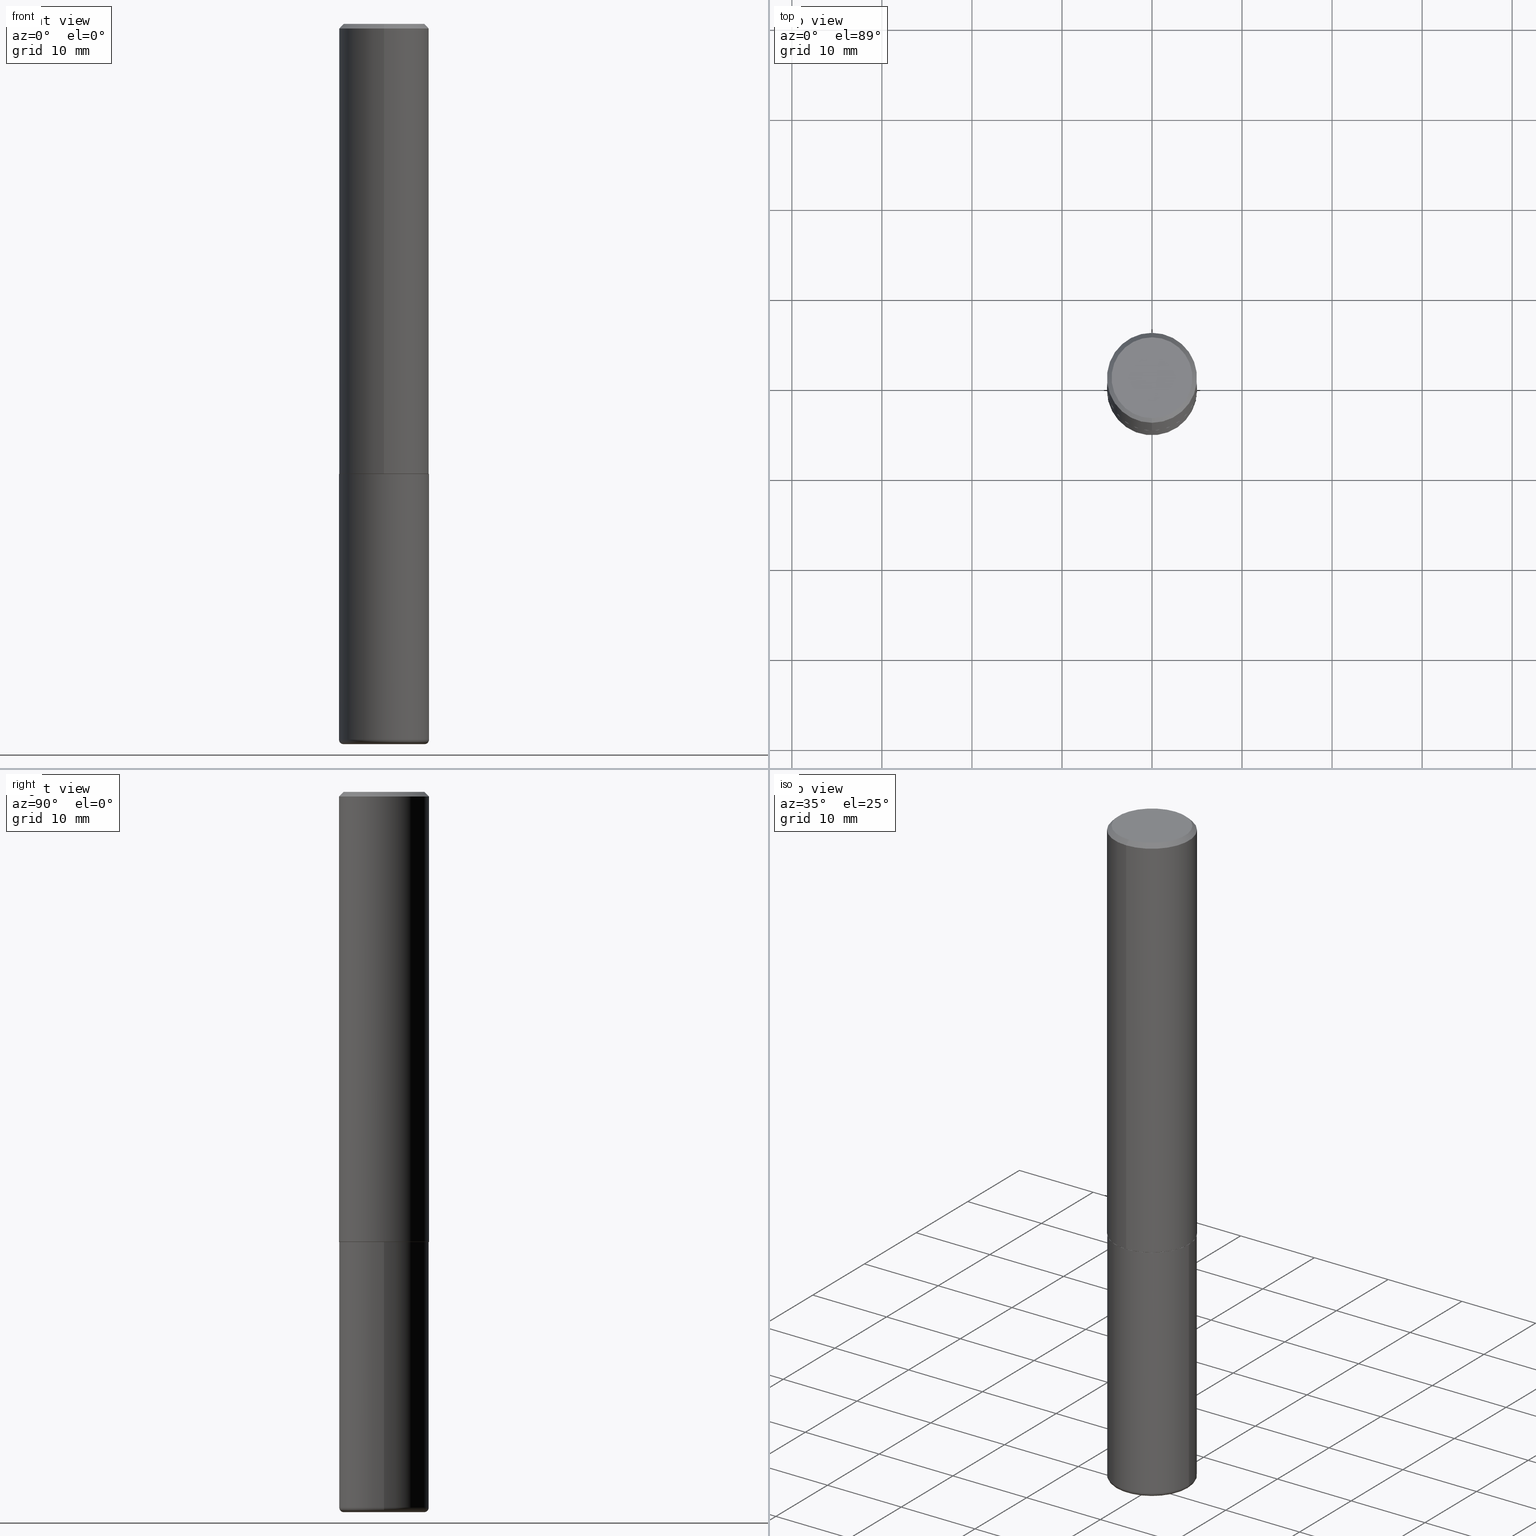
[diagram: canonical four-view strip — front | top / right | iso, engineering-drawing reading convention]
A machine part, canonical four-view strip (front | top / right | iso — engineering-drawing reading convention). The complete STEP part file that produces these views, byte-faithful:
ISO-10303-21;
HEADER;
FILE_DESCRIPTION (( 'STEP AP203' ),
    '1' );
FILE_NAME ('74414.STEP',
    '2024-03-06T15:12:17',
    ( '' ),
    ( '' ),
    'SwSTEP 2.0',
    'SolidWorks 2023',
    '' );
FILE_SCHEMA (( 'CONFIG_CONTROL_DESIGN' ));
ENDSEC;

DATA;
#1 = EDGE_CURVE ( 'NONE', #213, #373, #341, .T. ) ;
#2 = CARTESIAN_POINT ( 'NONE',  ( 1.234936949548815012E-15, 0.1768499999999998407, -5.065124715121833152E-16 ) ) ;
#3 = APPROVAL_DATE_TIME ( #94, #241 ) ;
#4 = SECURITY_CLASSIFICATION ( '', '', #100 ) ;
#5 = DIRECTION ( 'NONE',  ( -2.445468806185136597E-29, 3.491481338843145583E-15, 1.000000000000000000 ) ) ;
#6 = COORDINATED_UNIVERSAL_TIME_OFFSET ( 5, 0, .BEHIND. ) ;
#7 = CARTESIAN_POINT ( 'NONE',  ( 1.391597947986204111E-15, 0.1958499999999931407, -1.968500000000000583 ) ) ;
#8 = ADVANCED_FACE ( 'NONE', ( #416 ), #55, .F. ) ;
#9 = DIRECTION ( 'NONE',  ( -2.445268841296851437E-29, 3.491767699944464545E-15, 1.000000000000000000 ) ) ;
#10 = AXIS2_PLACEMENT_3D ( 'NONE', #307, #317, #311 ) ;
#11 = APPROVAL_PERSON_ORGANIZATION ( #320, #241, #414 ) ;
#12 = CARTESIAN_POINT ( 'NONE',  ( -0.1968500000000000250, -7.501780853635190206E-15, -1.968499999999999694 ) ) ;
#13 = ORIENTED_EDGE ( 'NONE', *, *, #151, .T. ) ;
#14 = ADVANCED_FACE ( 'NONE', ( #288 ), #228, .F. ) ;
#15 = CC_DESIGN_PERSON_AND_ORGANIZATION_ASSIGNMENT ( #191, #134, ( #4 ) ) ;
#16 = AXIS2_PLACEMENT_3D ( 'NONE', #224, #410, #193 ) ;
#17 = AXIS2_PLACEMENT_3D ( 'NONE', #83, #310, #251 ) ;
#18 = VERTEX_POINT ( 'NONE', #126 ) ;
#19 = CARTESIAN_POINT ( 'NONE',  ( 4.813905344975440714E-29, -6.872981015512730918E-15, -1.968499999999999694 ) ) ;
#20 = ORIENTED_EDGE ( 'NONE', *, *, #229, .T. ) ;
#21 = FACE_OUTER_BOUND ( 'NONE', #77, .T. ) ;
#22 = ORIENTED_EDGE ( 'NONE', *, *, #201, .T. ) ;
#23 = DIRECTION ( 'NONE',  ( -2.445268841296851437E-29, 3.491767699944464545E-15, 1.000000000000000000 ) ) ;
#24 = VECTOR ( 'NONE', #324, 39.37007874015748854 ) ;
#25 = ORIENTED_EDGE ( 'NONE', *, *, #346, .F. ) ;
#26 = DIRECTION ( 'NONE',  ( 7.105427357601001859E-15, 1.000000000000000000, -3.491481338843145583E-15 ) ) ;
#27 = ORIENTED_EDGE ( 'NONE', *, *, #415, .F. ) ;
#28 = VERTEX_POINT ( 'NONE', #60 ) ;
#29 = EDGE_CURVE ( 'NONE', #28, #176, #80, .T. ) ;
#30 = ORIENTED_EDGE ( 'NONE', *, *, #182, .F. ) ;
#31 = VECTOR ( 'NONE', #380, 39.37007874015748143 ) ;
#32 = CONICAL_SURFACE ( 'NONE', #142, 0.1958499999999999963, 0.7853981633975336552 ) ;
#33 = PERSON_AND_ORGANIZATION_ROLE ( 'design_supplier' ) ;
#34 = ORIENTED_EDGE ( 'NONE', *, *, #346, .T. ) ;
#35 = EDGE_CURVE ( 'NONE', #62, #213, #160, .T. ) ;
#36 = DIRECTION ( 'NONE',  ( 6.982962677686265133E-15, 1.000000000000000000, -3.491137977679279029E-15 ) ) ;
#37 = ADVANCED_FACE ( 'NONE', ( #156 ), #57, .F. ) ;
#38 = PERSON_AND_ORGANIZATION ( #396, #217 ) ;
#39 = FACE_OUTER_BOUND ( 'NONE', #215, .T. ) ;
#40 = CALENDAR_DATE ( 2024, 6, 3 ) ;
#41 = DIRECTION ( 'NONE',  ( -2.445268841296851437E-29, 3.491767699944464545E-15, 1.000000000000000000 ) ) ;
#42 = DIRECTION ( 'NONE',  ( 2.438088387897960049E-29, -3.491481338843145188E-15, -1.000000000000000000 ) ) ;
#43 = CYLINDRICAL_SURFACE ( 'NONE', #98, 0.1968499999999999694 ) ;
#44 = CIRCLE ( 'NONE', #277, 0.1968499999999999694 ) ;
#45 = AXIS2_PLACEMENT_3D ( 'NONE', #235, #5, #132 ) ;
#46 = DIRECTION ( 'NONE',  ( -2.445268841296851437E-29, 3.491767699944464545E-15, 1.000000000000000000 ) ) ;
#47 = ORIENTED_EDGE ( 'NONE', *, *, #51, .T. ) ;
#48 = CC_DESIGN_DATE_AND_TIME_ASSIGNMENT ( #161, #379, ( #221 ) ) ;
#49 = ORIENTED_EDGE ( 'NONE', *, *, #364, .F. ) ;
#50 = ORIENTED_EDGE ( 'NONE', *, *, #240, .T. ) ;
#51 = EDGE_CURVE ( 'NONE', #18, #401, #171, .T. ) ;
#52 = DIRECTION ( 'NONE',  ( 4.937700262164538576E-15, 0.7071067811865437980, -0.7071067811865511255 ) ) ;
#53 = ORIENTED_EDGE ( 'NONE', *, *, #390, .T. ) ;
#54 = DIRECTION ( 'NONE',  ( -2.445268841296851437E-29, 3.491767699944464545E-15, 1.000000000000000000 ) ) ;
#55 = PLANE ( 'NONE',  #394 ) ;
#56 = CARTESIAN_POINT ( 'NONE',  ( 4.890537682593712927E-31, -6.983535399888942699E-17, -0.02000000000000004205 ) ) ;
#57 = PLANE ( 'NONE',  #267 ) ;
#58 = PRODUCT_RELATED_PRODUCT_CATEGORY ( 'detail', '', ( #73 ) ) ;
#59 = LINE ( 'NONE', #155, #131 ) ;
#60 = CARTESIAN_POINT ( 'NONE',  ( 0.1968500000000000250, -8.247577218615273316E-15, -1.968499999999999694 ) ) ;
#61 = PERSON_AND_ORGANIZATION_ROLE ( 'creator' ) ;
#62 = VERTEX_POINT ( 'NONE', #378 ) ;
#63 = CIRCLE ( 'NONE', #295, 0.1968499999999999694 ) ;
#64 = EDGE_CURVE ( 'NONE', #361, #62, #290, .T. ) ;
#65 = DIRECTION ( 'NONE',  ( 6.982962677686265922E-15, 1.000000000000000000, -3.491767699944464940E-15 ) ) ;
#66 = CARTESIAN_POINT ( 'NONE',  ( 7.654072816478859974E-29, -1.092798744244516270E-14, -3.129900000000000571 ) ) ;
#67 = CALENDAR_DATE ( 2024, 6, 3 ) ;
#68 = LINE ( 'NONE', #264, #87 ) ;
#69 = CONICAL_SURFACE ( 'NONE', #234, 0.1968500000000000527, 0.7853981633974466137 ) ;
#70 = DIRECTION ( 'NONE',  ( 0.000000000000000000, 0.000000000000000000, 1.000000000000000000 ) ) ;
#71 = DIRECTION ( 'NONE',  ( -2.445468806185136597E-29, 3.491481338843145583E-15, 1.000000000000000000 ) ) ;
#72 = LINE ( 'NONE', #203, #342 ) ;
#73 = PRODUCT ( '74414', '74414', '', ( #157 ) ) ;
#74 = DIRECTION ( 'NONE',  ( -6.982962677686265133E-15, -1.000000000000000000, 3.491137977679279029E-15 ) ) ;
#75 = CC_DESIGN_APPROVAL ( #309, ( #221 ) ) ;
#76 = ADVANCED_FACE ( 'NONE', ( #128 ), #69, .T. ) ;
#77 = EDGE_LOOP ( 'NONE', ( #403, #206, #162, #190 ) ) ;
#78 = ORIENTED_EDGE ( 'NONE', *, *, #125, .F. ) ;
#79 = VERTEX_POINT ( 'NONE', #154 ) ;
#80 = CIRCLE ( 'NONE', #248, 0.1968500000000000250 ) ;
#81 = AXIS2_PLACEMENT_3D ( 'NONE', #408, #144, #214 ) ;
#82 = ORIENTED_EDGE ( 'NONE', *, *, #262, .F. ) ;
#83 = CARTESIAN_POINT ( 'NONE',  ( 7.702248551960706711E-29, -1.099676962482037231E-14, -3.149600000000000399 ) ) ;
#84 = CYLINDRICAL_SURFACE ( 'NONE', #90, 0.1968500000000001360 ) ;
#85 = CARTESIAN_POINT ( 'NONE',  ( -1.374596203102542397E-15, -0.1968500000000001360, 6.873544717340683232E-16 ) ) ;
#86 = ADVANCED_FACE ( 'NONE', ( #252 ), #314, .T. ) ;
#87 = VECTOR ( 'NONE', #230, 39.37007874015748143 ) ;
#88 = AXIS2_PLACEMENT_3D ( 'NONE', #253, #89, #123 ) ;
#89 = DIRECTION ( 'NONE',  ( -2.445468806185136597E-29, 3.491481338843145583E-15, 1.000000000000000000 ) ) ;
#90 = AXIS2_PLACEMENT_3D ( 'NONE', #210, #219, #116 ) ;
#91 = CC_DESIGN_PERSON_AND_ORGANIZATION_ASSIGNMENT ( #38, #33, ( #185 ) ) ;
#92 = DIRECTION ( 'NONE',  ( -2.445468806185136877E-29, 3.491481338843145188E-15, 1.000000000000000000 ) ) ;
#93 = EDGE_LOOP ( 'NONE', ( #303, #370, #409, #271 ) ) ;
#94 = DATE_AND_TIME ( #40, #209 ) ;
#95 = VERTEX_POINT ( 'NONE', #411 ) ;
#96 = CARTESIAN_POINT ( 'NONE',  ( 0.000000000000000000, 0.000000000000000000, 0.000000000000000000 ) ) ;
#97 = CARTESIAN_POINT ( 'NONE',  ( 4.813511714092851266E-29, -6.873544717340677315E-15, -1.968499999999999694 ) ) ;
#98 = AXIS2_PLACEMENT_3D ( 'NONE', #327, #263, #170 ) ;
#99 = CIRCLE ( 'NONE', #149, 0.1968500000000000527 ) ;
#100 = SECURITY_CLASSIFICATION_LEVEL ( 'unclassified' ) ;
#101 = FACE_OUTER_BOUND ( 'NONE', #372, .T. ) ;
#102 = DATE_AND_TIME ( #312, #256 ) ;
#103 = FACE_OUTER_BOUND ( 'NONE', #145, .T. ) ;
#104 = COORDINATED_UNIVERSAL_TIME_OFFSET ( 5, 0, .BEHIND. ) ;
#105 = DIRECTION ( 'NONE',  ( -2.445268841296851437E-29, 3.491767699944464545E-15, 1.000000000000000000 ) ) ;
#106 = CC_DESIGN_APPROVAL ( #241, ( #185 ) ) ;
#107 = CARTESIAN_POINT ( 'NONE',  ( 4.890537682593712927E-31, -6.983535399888942699E-17, -0.02000000000000004205 ) ) ;
#108 = FACE_OUTER_BOUND ( 'NONE', #334, .T. ) ;
#109 = ADVANCED_FACE ( 'NONE', ( #103 ), #199, .T. ) ;
#110 = CC_DESIGN_PERSON_AND_ORGANIZATION_ASSIGNMENT ( #381, #318, ( #73 ) ) ;
#111 = LOCAL_TIME ( 10, 12, 17.00000000000000000, #104 ) ;
#112 = ORIENTED_EDGE ( 'NONE', *, *, #329, .T. ) ;
#113 = EDGE_LOOP ( 'NONE', ( #399, #247, #150, #243 ) ) ;
#114 = CARTESIAN_POINT ( 'NONE',  ( 1.395150661665005404E-15, 0.1958499999999931407, -1.968500000000000583 ) ) ;
#115 = ORIENTED_EDGE ( 'NONE', *, *, #306, .T. ) ;
#116 = DIRECTION ( 'NONE',  ( -6.982962677686265922E-15, -1.000000000000000000, 3.491767699944464545E-15 ) ) ;
#117 = AXIS2_PLACEMENT_3D ( 'NONE', #302, #54, #365 ) ;
#118 = EDGE_LOOP ( 'NONE', ( #363, #275, #141, #82 ) ) ;
#119 = DIRECTION ( 'NONE',  ( -2.445268841296851437E-29, 3.491767699944464545E-15, 1.000000000000000000 ) ) ;
#120 = EDGE_LOOP ( 'NONE', ( #49, #286 ) ) ;
#121 = LINE ( 'NONE', #255, #278 ) ;
#122 = AXIS2_PLACEMENT_3D ( 'NONE', #291, #46, #173 ) ;
#123 = DIRECTION ( 'NONE',  ( 1.000000000000000000, -6.982962677686271444E-15, 4.883557194083114022E-29 ) ) ;
#124 = APPROVAL_ROLE ( '' ) ;
#125 = EDGE_CURVE ( 'NONE', #299, #28, #72, .T. ) ;
#126 = CARTESIAN_POINT ( 'NONE',  ( -0.1771500000000000019, -9.633663617761380556E-15, -3.149600000000000399 ) ) ;
#127 = APPLICATION_CONTEXT ( 'configuration controlled 3d designs of mechanical parts and assemblies' ) ;
#128 = FACE_OUTER_BOUND ( 'NONE', #183, .T. ) ;
#129 = CARTESIAN_POINT ( 'NONE',  ( 1.374596203102542200E-15, 0.1968499999999999694, -0.02000000000000072900 ) ) ;
#130 = CIRCLE ( 'NONE', #227, 0.1968500000000000527 ) ;
#131 = VECTOR ( 'NONE', #92, 39.37007874015748143 ) ;
#132 = DIRECTION ( 'NONE',  ( 1.000000000000000000, -6.982962677686266711E-15, 4.876176775795935793E-29 ) ) ;
#133 = ADVANCED_FACE ( 'NONE', ( #108 ), #43, .T. ) ;
#134 = PERSON_AND_ORGANIZATION_ROLE ( 'classification_officer' ) ;
#135 = DIRECTION ( 'NONE',  ( 5.024295867788490741E-15, 0.7071067811866103003, 0.7071067811864847341 ) ) ;
#136 = FACE_OUTER_BOUND ( 'NONE', #333, .T. ) ;
#137 = AXIS2_PLACEMENT_3D ( 'NONE', #359, #42, #268 ) ;
#138 = DIRECTION ( 'NONE',  ( 6.982962677686265133E-15, 1.000000000000000000, -3.491137977679279029E-15 ) ) ;
#139 = EDGE_CURVE ( 'NONE', #213, #95, #164, .T. ) ;
#140 = DESIGN_CONTEXT ( 'detailed design', #366, 'design' ) ;
#141 = ORIENTED_EDGE ( 'NONE', *, *, #35, .T. ) ;
#142 = AXIS2_PLACEMENT_3D ( 'NONE', #279, #119, #189 ) ;
#143 = MANIFOLD_SOLID_BREP ( 'Body-Move/Copy2[1]', #367 ) ;
#144 = DIRECTION ( 'NONE',  ( -2.445268841296851437E-29, 3.491767699944464545E-15, 1.000000000000000000 ) ) ;
#145 = EDGE_LOOP ( 'NONE', ( #339, #301 ) ) ;
#146 = ORIENTED_EDGE ( 'NONE', *, *, #328, .T. ) ;
#147 = CARTESIAN_POINT ( 'NONE',  ( -1.281884050883609900E-15, -0.1768499999999998407, 8.395324101811677409E-16 ) ) ;
#148 = TOROIDAL_SURFACE ( 'NONE', #384, 0.1771500000000000019, 0.01969999999999987733 ) ;
#149 = AXIS2_PLACEMENT_3D ( 'NONE', #56, #178, #376 ) ;
#150 = ORIENTED_EDGE ( 'NONE', *, *, #139, .F. ) ;
#151 = EDGE_CURVE ( 'NONE', #79, #299, #63, .T. ) ;
#152 = CC_DESIGN_PERSON_AND_ORGANIZATION_ASSIGNMENT ( #385, #389, ( #221 ) ) ;
#153 = DIRECTION ( 'NONE',  ( -1.000000000000000000, 7.105427357600965571E-15, 0.000000000000000000 ) ) ;
#154 = CARTESIAN_POINT ( 'NONE',  ( -0.1968499999999999417, -9.529284067101404126E-15, -3.129900000000000571 ) ) ;
#155 = CARTESIAN_POINT ( 'NONE',  ( -0.1968499999999999694, 1.398703375343756999E-15, -9.682923725166782276E-30 ) ) ;
#156 = FACE_OUTER_BOUND ( 'NONE', #362, .T. ) ;
#157 = MECHANICAL_CONTEXT ( 'NONE', #127, 'mechanical' ) ;
#158 = DIRECTION ( 'NONE',  ( -2.445468806185136597E-29, 3.491481338843145583E-15, 1.000000000000000000 ) ) ;
#159 = APPROVAL_DATE_TIME ( #102, #309 ) ;
#160 = LINE ( 'NONE', #350, #31 ) ;
#161 = DATE_AND_TIME ( #292, #285 ) ;
#162 = ORIENTED_EDGE ( 'NONE', *, *, #1, .T. ) ;
#163 = LINE ( 'NONE', #238, #24 ) ;
#164 = CIRCLE ( 'NONE', #398, 0.1968500000000002470 ) ;
#165 = CIRCLE ( 'NONE', #17, 0.1771500000000000019 ) ;
#166 = DIRECTION ( 'NONE',  ( 1.000000000000000000, 0.000000000000000000, 0.000000000000000000 ) ) ;
#167 = CC_DESIGN_PERSON_AND_ORGANIZATION_ASSIGNMENT ( #258, #61, ( #185 ) ) ;
#168 = DIRECTION ( 'NONE',  ( -6.982962677686265922E-15, -1.000000000000000000, 4.163344669033670112E-15 ) ) ;
#169 = CARTESIAN_POINT ( 'NONE',  ( 0.1771500000000000019, -1.216501928079728352E-14, -3.129900000000000571 ) ) ;
#170 = DIRECTION ( 'NONE',  ( 1.000000000000000000, -6.982962677686266711E-15, 4.876176775795935793E-29 ) ) ;
#171 = CIRCLE ( 'NONE', #16, 0.1771500000000000019 ) ;
#172 = CONICAL_SURFACE ( 'NONE', #375, 0.1958499999999999963, 0.7853981633975336552 ) ;
#173 = DIRECTION ( 'NONE',  ( -6.982962677686265922E-15, -1.000000000000000000, 3.491767699944464545E-15 ) ) ;
#174 = ORIENTED_EDGE ( 'NONE', *, *, #29, .T. ) ;
#175 = PRODUCT_DEFINITION_SHAPE ( 'NONE', 'NONE',  #221 ) ;
#176 = VERTEX_POINT ( 'NONE', #12 ) ;
#177 = EDGE_LOOP ( 'NONE', ( #174, #300 ) ) ;
#178 = DIRECTION ( 'NONE',  ( -2.445268841296851437E-29, 3.491767699944464545E-15, 1.000000000000000000 ) ) ;
#179 = ORIENTED_EDGE ( 'NONE', *, *, #201, .F. ) ;
#180 = ADVANCED_FACE ( 'NONE', ( #136 ), #405, .T. ) ;
#181 =( NAMED_UNIT ( * ) SI_UNIT ( $, .STERADIAN. ) SOLID_ANGLE_UNIT ( ) );
#182 = EDGE_CURVE ( 'NONE', #299, #79, #44, .T. ) ;
#183 = EDGE_LOOP ( 'NONE', ( #220, #25, #146, #50 ) ) ;
#184 = DIRECTION ( 'NONE',  ( -2.445268841296851437E-29, 3.491767699944464545E-15, 1.000000000000000000 ) ) ;
#185 = PRODUCT_DEFINITION_FORMATION_WITH_SPECIFIED_SOURCE ( 'ANY', '', #73, .NOT_KNOWN. ) ;
#186 = DIRECTION ( 'NONE',  ( 1.000000000000000000, -6.982962677686267499E-15, 0.000000000000000000 ) ) ;
#187 = APPLICATION_PROTOCOL_DEFINITION ( 'international standard', 'config_control_design', 1994, #127 ) ;
#188 = DIRECTION ( 'NONE',  ( 2.445268841296850876E-29, -3.491767699944464940E-15, -1.000000000000000000 ) ) ;
#189 = DIRECTION ( 'NONE',  ( -6.982962677686265922E-15, -1.000000000000000000, 4.184602492209747448E-15 ) ) ;
#190 = ORIENTED_EDGE ( 'NONE', *, *, #240, .F. ) ;
#191 = PERSON_AND_ORGANIZATION ( #396, #217 ) ;
#192 =( GEOMETRIC_REPRESENTATION_CONTEXT ( 3 ) GLOBAL_UNCERTAINTY_ASSIGNED_CONTEXT ( ( #382 ) ) GLOBAL_UNIT_ASSIGNED_CONTEXT ( ( #369, #338, #181 ) ) REPRESENTATION_CONTEXT ( 'NONE', 'WORKASPACE' ) );
#193 = DIRECTION ( 'NONE',  ( 1.000000000000000000, -6.982962677686261189E-15, 0.000000000000000000 ) ) ;
#194 = DIRECTION ( 'NONE',  ( 2.445268841296851437E-29, -3.491767699944464545E-15, -1.000000000000000000 ) ) ;
#195 = COORDINATED_UNIVERSAL_TIME_OFFSET ( 5, 0, .BEHIND. ) ;
#196 = CARTESIAN_POINT ( 'NONE',  ( -1.374596203102495065E-15, -0.1968500000000071026, -1.967499999999998916 ) ) ;
#197 = EDGE_CURVE ( 'NONE', #95, #207, #68, .T. ) ;
#198 = DATE_AND_TIME ( #67, #111 ) ;
#199 = PLANE ( 'NONE',  #137 ) ;
#200 = DIRECTION ( 'NONE',  ( 1.000000000000000000, -6.982962677686271444E-15, 4.883557194083114022E-29 ) ) ;
#201 = EDGE_CURVE ( 'NONE', #401, #299, #254, .T. ) ;
#202 = DIRECTION ( 'NONE',  ( -2.445468806185136877E-29, 3.491481338843145188E-15, 1.000000000000000000 ) ) ;
#203 = CARTESIAN_POINT ( 'NONE',  ( 0.1968499999999999694, -1.374596203102541411E-15, 9.598753983154298056E-30 ) ) ;
#204 = VECTOR ( 'NONE', #218, 39.37007874015748143 ) ;
#205 = AXIS2_PLACEMENT_3D ( 'NONE', #19, #305, #274 ) ;
#206 = ORIENTED_EDGE ( 'NONE', *, *, #262, .T. ) ;
#207 = VERTEX_POINT ( 'NONE', #129 ) ;
#208 = ORIENTED_EDGE ( 'NONE', *, *, #182, .T. ) ;
#209 = LOCAL_TIME ( 10, 12, 17.00000000000000000, #351 ) ;
#210 = CARTESIAN_POINT ( 'NONE',  ( 0.000000000000000000, 0.000000000000000000, 0.000000000000000000 ) ) ;
#211 = ADVANCED_FACE ( 'NONE', ( #101 ), #148, .T. ) ;
#212 = CARTESIAN_POINT ( 'NONE',  ( -0.1771500000000000019, -9.669260986046144223E-15, -3.129900000000000571 ) ) ;
#213 = VERTEX_POINT ( 'NONE', #196 ) ;
#214 = DIRECTION ( 'NONE',  ( -6.982962677686265922E-15, -1.000000000000000000, 4.184602492209747448E-15 ) ) ;
#215 = EDGE_LOOP ( 'NONE', ( #276, #13, #242, #280 ) ) ;
#216 = DIRECTION ( 'NONE',  ( -6.982962677686265922E-15, -1.000000000000000000, 4.184602492209747448E-15 ) ) ;
#217 = ORGANIZATION ( 'UNSPECIFIED', 'UNSPECIFIED', '' ) ;
#218 = DIRECTION ( 'NONE',  ( -2.445268841296851437E-29, 3.491767699944464940E-15, 1.000000000000000000 ) ) ;
#219 = DIRECTION ( 'NONE',  ( -2.445268841296851437E-29, 3.491767699944464545E-15, 1.000000000000000000 ) ) ;
#220 = ORIENTED_EDGE ( 'NONE', *, *, #229, .F. ) ;
#221 = PRODUCT_DEFINITION ( 'UNKNOWN', '', #185, #140 ) ;
#222 = PERSON_AND_ORGANIZATION ( #396, #217 ) ;
#223 = DIMENSIONAL_EXPONENTS ( 1.000000000000000000, 0.000000000000000000, 0.000000000000000000, 0.000000000000000000, 0.000000000000000000, 0.000000000000000000, 0.000000000000000000 ) ;
#224 = CARTESIAN_POINT ( 'NONE',  ( 7.702248551960706711E-29, -1.099676962482037231E-14, -3.149600000000000399 ) ) ;
#225 = APPROVAL_STATUS ( 'not_yet_approved' ) ;
#226 = AXIS2_PLACEMENT_3D ( 'NONE', #326, #266, #138 ) ;
#227 = AXIS2_PLACEMENT_3D ( 'NONE', #107, #105, #74 ) ;
#228 = PLANE ( 'NONE',  #412 ) ;
#229 = EDGE_CURVE ( 'NONE', #344, #373, #163, .T. ) ;
#230 = DIRECTION ( 'NONE',  ( -2.445268841296851437E-29, 3.491767699944464940E-15, 1.000000000000000000 ) ) ;
#231 = APPROVAL_STATUS ( 'not_yet_approved' ) ;
#232 = CARTESIAN_POINT ( 'NONE',  ( 4.811066445251554069E-29, -6.870052949640732965E-15, -1.967499999999999805 ) ) ;
#233 = APPROVAL_DATE_TIME ( #198, #353 ) ;
#234 = AXIS2_PLACEMENT_3D ( 'NONE', #283, #194, #36 ) ;
#235 = CARTESIAN_POINT ( 'NONE',  ( 0.000000000000000000, 0.000000000000000000, 0.000000000000000000 ) ) ;
#236 = AXIS2_PLACEMENT_3D ( 'NONE', #212, #26, #153 ) ;
#237 = FACE_OUTER_BOUND ( 'NONE', #93, .T. ) ;
#238 = CARTESIAN_POINT ( 'NONE',  ( -1.350489030861325626E-15, -0.1968500000000001082, -0.01999999999999935510 ) ) ;
#239 = APPROVAL_PERSON_ORGANIZATION ( #222, #353, #348 ) ;
#240 = EDGE_CURVE ( 'NONE', #207, #373, #130, .T. ) ;
#241 = APPROVAL ( #231, 'UNSPECIFIED' ) ;
#242 = ORIENTED_EDGE ( 'NONE', *, *, #125, .T. ) ;
#243 = ORIENTED_EDGE ( 'NONE', *, *, #35, .F. ) ;
#244 = ADVANCED_BREP_SHAPE_REPRESENTATION ( '74414', ( #143, #272, #374 ), #192 ) ;
#245 =( LENGTH_UNIT ( ) NAMED_UNIT ( * ) SI_UNIT ( $, .METRE. ) );
#246 = ADVANCED_FACE ( 'NONE', ( #237 ), #331, .T. ) ;
#247 = ORIENTED_EDGE ( 'NONE', *, *, #270, .T. ) ;
#248 = AXIS2_PLACEMENT_3D ( 'NONE', #281, #158, #186 ) ;
#249 = CARTESIAN_POINT ( 'NONE',  ( 0.1771500000000000019, -1.223380146317249313E-14, -3.149600000000000399 ) ) ;
#250 = VERTEX_POINT ( 'NONE', #321 ) ;
#251 = DIRECTION ( 'NONE',  ( 1.000000000000000000, -6.982962677686261189E-15, 0.000000000000000000 ) ) ;
#252 = FACE_OUTER_BOUND ( 'NONE', #261, .T. ) ;
#253 = CARTESIAN_POINT ( 'NONE',  ( 7.654072816478859974E-29, -1.092798744244516270E-14, -3.129900000000000571 ) ) ;
#254 = CIRCLE ( 'NONE', #330, 0.01969999999999989468 ) ;
#255 = CARTESIAN_POINT ( 'NONE',  ( 1.374596203102542200E-15, 0.1968499999999999694, -0.02000000000000072900 ) ) ;
#256 = LOCAL_TIME ( 10, 12, 17.00000000000000000, #287 ) ;
#257 = ORIENTED_EDGE ( 'NONE', *, *, #151, .F. ) ;
#258 = PERSON_AND_ORGANIZATION ( #396, #217 ) ;
#259 = ORIENTED_EDGE ( 'NONE', *, *, #29, .F. ) ;
#260 = ADVANCED_FACE ( 'NONE', ( #39 ), #391, .T. ) ;
#261 = EDGE_LOOP ( 'NONE', ( #27, #47, #22, #257 ) ) ;
#262 = EDGE_CURVE ( 'NONE', #95, #213, #407, .T. ) ;
#263 = DIRECTION ( 'NONE',  ( -2.445468806185136597E-29, 3.491481338843145583E-15, 1.000000000000000000 ) ) ;
#264 = CARTESIAN_POINT ( 'NONE',  ( 1.398703375343757985E-15, 0.1968500000000001360, -6.873544717340683232E-16 ) ) ;
#265 = DATE_AND_TIME ( #417, #273 ) ;
#266 = DIRECTION ( 'NONE',  ( 2.445268841296851437E-29, -3.491767699944464545E-15, -1.000000000000000000 ) ) ;
#267 = AXIS2_PLACEMENT_3D ( 'NONE', #2, #188, #65 ) ;
#268 = DIRECTION ( 'NONE',  ( -1.000000000000000000, 6.982962677686265922E-15, -4.876176775795935793E-29 ) ) ;
#269 = DIRECTION ( 'NONE',  ( 1.000000000000000000, -6.982962677686269866E-15, 0.000000000000000000 ) ) ;
#270 = EDGE_CURVE ( 'NONE', #361, #95, #293, .T. ) ;
#271 = ORIENTED_EDGE ( 'NONE', *, *, #1, .F. ) ;
#272 = MANIFOLD_SOLID_BREP ( 'Body-Move/Copy2[2]', #335 ) ;
#273 = LOCAL_TIME ( 10, 12, 17.00000000000000000, #195 ) ;
#274 = DIRECTION ( 'NONE',  ( 1.000000000000000000, -6.982962677686267499E-15, 0.000000000000000000 ) ) ;
#275 = ORIENTED_EDGE ( 'NONE', *, *, #64, .T. ) ;
#276 = ORIENTED_EDGE ( 'NONE', *, *, #308, .F. ) ;
#277 = AXIS2_PLACEMENT_3D ( 'NONE', #298, #397, #269 ) ;
#278 = VECTOR ( 'NONE', #52, 39.37007874015748854 ) ;
#279 = CARTESIAN_POINT ( 'NONE',  ( 4.813511714092851266E-29, -6.873544717340677315E-15, -1.968499999999999694 ) ) ;
#280 = ORIENTED_EDGE ( 'NONE', *, *, #400, .F. ) ;
#281 = CARTESIAN_POINT ( 'NONE',  ( 4.813905344975440714E-29, -6.872981015512730918E-15, -1.968499999999999694 ) ) ;
#282 = FACE_OUTER_BOUND ( 'NONE', #118, .T. ) ;
#283 = CARTESIAN_POINT ( 'NONE',  ( 4.890537682593712927E-31, -6.983535399888942699E-17, -0.02000000000000004205 ) ) ;
#284 = APPROVAL_STATUS ( 'not_yet_approved' ) ;
#285 = LOCAL_TIME ( 10, 12, 17.00000000000000000, #6 ) ;
#286 = ORIENTED_EDGE ( 'NONE', *, *, #64, .F. ) ;
#287 = COORDINATED_UNIVERSAL_TIME_OFFSET ( 5, 0, .BEHIND. ) ;
#288 = FACE_OUTER_BOUND ( 'NONE', #177, .T. ) ;
#289 = DIRECTION ( 'NONE',  ( -2.445268841296850876E-29, 3.491767699944464940E-15, 1.000000000000000000 ) ) ;
#290 = CIRCLE ( 'NONE', #10, 0.1958499999999999963 ) ;
#291 = CARTESIAN_POINT ( 'NONE',  ( 0.000000000000000000, 0.000000000000000000, 0.000000000000000000 ) ) ;
#292 = CALENDAR_DATE ( 2024, 6, 3 ) ;
#293 = LINE ( 'NONE', #7, #297 ) ;
#294 = CARTESIAN_POINT ( 'NONE',  ( 7.654072816478859974E-29, -1.092798744244516270E-14, -3.129900000000000571 ) ) ;
#295 = AXIS2_PLACEMENT_3D ( 'NONE', #66, #71, #387 ) ;
#296 = DIRECTION ( 'NONE',  ( -6.982962677686265922E-15, -1.000000000000000000, 4.163344669033670112E-15 ) ) ;
#297 = VECTOR ( 'NONE', #135, 39.37007874015748143 ) ;
#298 = CARTESIAN_POINT ( 'NONE',  ( 7.654072816478859974E-29, -1.092798744244516270E-14, -3.129900000000000571 ) ) ;
#299 = VERTEX_POINT ( 'NONE', #356 ) ;
#300 = ORIENTED_EDGE ( 'NONE', *, *, #400, .T. ) ;
#301 = ORIENTED_EDGE ( 'NONE', *, *, #51, .F. ) ;
#302 = CARTESIAN_POINT ( 'NONE',  ( -5.428821863719041386E-45, 7.752188435212310874E-31, 2.220132924459896583E-16 ) ) ;
#303 = ORIENTED_EDGE ( 'NONE', *, *, #139, .T. ) ;
#304 = AXIS2_PLACEMENT_3D ( 'NONE', #232, #41, #168 ) ;
#305 = DIRECTION ( 'NONE',  ( -2.445468806185136597E-29, 3.491481338843145583E-15, 1.000000000000000000 ) ) ;
#306 = EDGE_CURVE ( 'NONE', #401, #18, #165, .T. ) ;
#307 = CARTESIAN_POINT ( 'NONE',  ( 4.813511714092851266E-29, -6.873544717340677315E-15, -1.968499999999999694 ) ) ;
#308 = EDGE_CURVE ( 'NONE', #79, #176, #59, .T. ) ;
#309 = APPROVAL ( #284, 'UNSPECIFIED' ) ;
#310 = DIRECTION ( 'NONE',  ( -2.445468806185136597E-29, 3.491481338843145583E-15, 1.000000000000000000 ) ) ;
#311 = DIRECTION ( 'NONE',  ( -6.982962677686265922E-15, -1.000000000000000000, 4.184602492209747448E-15 ) ) ;
#312 = CALENDAR_DATE ( 2024, 6, 3 ) ;
#313 = DIRECTION ( 'NONE',  ( 2.438088387897960049E-29, -3.491481338843145188E-15, -1.000000000000000000 ) ) ;
#314 = TOROIDAL_SURFACE ( 'NONE', #88, 0.1771500000000000019, 0.01969999999999987733 ) ;
#315 = SHAPE_DEFINITION_REPRESENTATION ( #175, #244 ) ;
#316 = APPROVAL_PERSON_ORGANIZATION ( #354, #309, #124 ) ;
#317 = DIRECTION ( 'NONE',  ( -2.445268841296851437E-29, 3.491767699944464545E-15, 1.000000000000000000 ) ) ;
#318 = PERSON_AND_ORGANIZATION_ROLE ( 'design_owner' ) ;
#319 = ORIENTED_EDGE ( 'NONE', *, *, #415, .T. ) ;
#320 = PERSON_AND_ORGANIZATION ( #396, #217 ) ;
#321 = CARTESIAN_POINT ( 'NONE',  ( 1.304766576325678705E-15, 0.1768499999999998407, -3.955058252891884244E-16 ) ) ;
#322 = APPLICATION_PROTOCOL_DEFINITION ( 'international standard', 'config_control_design', 1994, #366 ) ;
#323 = AXIS2_PLACEMENT_3D ( 'NONE', #402, #23, #404 ) ;
#324 = DIRECTION ( 'NONE',  ( -4.851104656540954809E-15, -0.7071067811865486830, -0.7071067811865462405 ) ) ;
#325 = CC_DESIGN_DATE_AND_TIME_ASSIGNMENT ( #265, #392, ( #4 ) ) ;
#326 = CARTESIAN_POINT ( 'NONE',  ( 4.890537682593712927E-31, -6.983535399888942699E-17, -0.02000000000000004205 ) ) ;
#327 = CARTESIAN_POINT ( 'NONE',  ( 0.000000000000000000, 0.000000000000000000, 0.000000000000000000 ) ) ;
#328 = EDGE_CURVE ( 'NONE', #250, #207, #121, .T. ) ;
#329 = EDGE_CURVE ( 'NONE', #373, #207, #99, .T. ) ;
#330 = AXIS2_PLACEMENT_3D ( 'NONE', #169, #395, #352 ) ;
#331 = CYLINDRICAL_SURFACE ( 'NONE', #122, 0.1968500000000001360 ) ;
#332 = CIRCLE ( 'NONE', #117, 0.1768499999999998407 ) ;
#333 = EDGE_LOOP ( 'NONE', ( #383, #20, #112, #406 ) ) ;
#334 = EDGE_LOOP ( 'NONE', ( #208, #337, #259, #78 ) ) ;
#335 = CLOSED_SHELL ( 'NONE', ( #388, #246, #180, #76, #358, #377, #8, #37 ) ) ;
#336 = LENGTH_MEASURE_WITH_UNIT ( LENGTH_MEASURE( 0.02539999999999999897 ), #245 );
#337 = ORIENTED_EDGE ( 'NONE', *, *, #308, .T. ) ;
#338 =( NAMED_UNIT ( * ) PLANE_ANGLE_UNIT ( ) SI_UNIT ( $, .RADIAN. ) );
#339 = ORIENTED_EDGE ( 'NONE', *, *, #306, .F. ) ;
#340 = FACE_OUTER_BOUND ( 'NONE', #113, .T. ) ;
#341 = LINE ( 'NONE', #85, #204 ) ;
#342 = VECTOR ( 'NONE', #202, 39.37007874015748143 ) ;
#343 = CC_DESIGN_APPROVAL ( #353, ( #4 ) ) ;
#344 = VERTEX_POINT ( 'NONE', #147 ) ;
#345 = CARTESIAN_POINT ( 'NONE',  ( -1.350489030861325626E-15, -0.1968500000000001082, -0.01999999999999935510 ) ) ;
#346 = EDGE_CURVE ( 'NONE', #250, #344, #360, .T. ) ;
#347 = DIRECTION ( 'NONE',  ( -6.982962677686265922E-15, -1.000000000000000000, 3.491767699944464940E-15 ) ) ;
#348 = APPROVAL_ROLE ( '' ) ;
#349 = CARTESIAN_POINT ( 'NONE',  ( 4.813905344975440714E-29, -6.872981015512730918E-15, -1.968499999999999694 ) ) ;
#350 = CARTESIAN_POINT ( 'NONE',  ( -1.367613240424807079E-15, -0.1958500000000068797, -1.968499999999999028 ) ) ;
#351 = COORDINATED_UNIVERSAL_TIME_OFFSET ( 5, 0, .BEHIND. ) ;
#352 = DIRECTION ( 'NONE',  ( 1.000000000000000000, -6.982962677686266711E-15, 0.000000000000000000 ) ) ;
#353 = APPROVAL ( #225, 'UNSPECIFIED' ) ;
#354 = PERSON_AND_ORGANIZATION ( #396, #217 ) ;
#355 = CIRCLE ( 'NONE', #236, 0.01969999999999989468 ) ;
#356 = CARTESIAN_POINT ( 'NONE',  ( 0.1968499999999999417, -1.230258364554770273E-14, -3.129900000000000571 ) ) ;
#357 = CARTESIAN_POINT ( 'NONE',  ( 4.811066445251554069E-29, -6.870052949640732965E-15, -1.967499999999999805 ) ) ;
#358 = ADVANCED_FACE ( 'NONE', ( #21 ), #84, .T. ) ;
#359 = CARTESIAN_POINT ( 'NONE',  ( 7.702248551960706711E-29, -1.099676962482037231E-14, -3.149600000000000399 ) ) ;
#360 = CIRCLE ( 'NONE', #323, 0.1768499999999998407 ) ;
#361 = VERTEX_POINT ( 'NONE', #114 ) ;
#362 = EDGE_LOOP ( 'NONE', ( #34, #53 ) ) ;
#363 = ORIENTED_EDGE ( 'NONE', *, *, #270, .F. ) ;
#364 = EDGE_CURVE ( 'NONE', #62, #361, #413, .T. ) ;
#365 = DIRECTION ( 'NONE',  ( -6.982962677686265922E-15, -1.000000000000000000, 3.491767699944464940E-15 ) ) ;
#366 = APPLICATION_CONTEXT ( 'configuration controlled 3d designs of mechanical parts and assemblies' ) ;
#367 = CLOSED_SHELL ( 'NONE', ( #133, #211, #14, #260, #86, #109 ) ) ;
#368 = CC_DESIGN_SECURITY_CLASSIFICATION ( #4, ( #185 ) ) ;
#369 =( CONVERSION_BASED_UNIT ( 'INCH', #336 ) LENGTH_UNIT ( ) NAMED_UNIT ( #223 ) );
#370 = ORIENTED_EDGE ( 'NONE', *, *, #197, .T. ) ;
#371 = CARTESIAN_POINT ( 'NONE',  ( 4.813511714092851266E-29, -6.873544717340677315E-15, -1.968499999999999694 ) ) ;
#372 = EDGE_LOOP ( 'NONE', ( #115, #319, #30, #179 ) ) ;
#373 = VERTEX_POINT ( 'NONE', #345 ) ;
#374 = AXIS2_PLACEMENT_3D ( 'NONE', #96, #70, #166 ) ;
#375 = AXIS2_PLACEMENT_3D ( 'NONE', #371, #184, #216 ) ;
#376 = DIRECTION ( 'NONE',  ( -6.982962677686265133E-15, -1.000000000000000000, 3.491137977679279029E-15 ) ) ;
#377 = ADVANCED_FACE ( 'NONE', ( #282 ), #172, .T. ) ;
#378 = CARTESIAN_POINT ( 'NONE',  ( -1.367613240424807079E-15, -0.1958500000000068797, -1.968499999999999028 ) ) ;
#379 = DATE_TIME_ROLE ( 'creation_date' ) ;
#380 = DIRECTION ( 'NONE',  ( -4.937700262164969294E-15, -0.7071067811866054154, 0.7071067811864896191 ) ) ;
#381 = PERSON_AND_ORGANIZATION ( #396, #217 ) ;
#382 = UNCERTAINTY_MEASURE_WITH_UNIT (LENGTH_MEASURE( 1.000000000000000082E-05 ), #369, 'distance_accuracy_value', 'NONE');
#383 = ORIENTED_EDGE ( 'NONE', *, *, #390, .F. ) ;
#384 = AXIS2_PLACEMENT_3D ( 'NONE', #294, #393, #200 ) ;
#385 = PERSON_AND_ORGANIZATION ( #396, #217 ) ;
#386 = CIRCLE ( 'NONE', #205, 0.1968500000000000250 ) ;
#387 = DIRECTION ( 'NONE',  ( 1.000000000000000000, -6.982962677686269866E-15, 0.000000000000000000 ) ) ;
#388 = ADVANCED_FACE ( 'NONE', ( #340 ), #32, .T. ) ;
#389 = PERSON_AND_ORGANIZATION_ROLE ( 'creator' ) ;
#390 = EDGE_CURVE ( 'NONE', #344, #250, #332, .T. ) ;
#391 = CYLINDRICAL_SURFACE ( 'NONE', #45, 0.1968499999999999694 ) ;
#392 = DATE_TIME_ROLE ( 'classification_date' ) ;
#393 = DIRECTION ( 'NONE',  ( -2.445468806185136597E-29, 3.491481338843145583E-15, 1.000000000000000000 ) ) ;
#394 = AXIS2_PLACEMENT_3D ( 'NONE', #97, #289, #347 ) ;
#395 = DIRECTION ( 'NONE',  ( -6.982962677686266711E-15, -1.000000000000000000, 3.491481338843145583E-15 ) ) ;
#396 = PERSON ( 'UNSPECIFIED', 'UNSPECIFIED', 'UNSPECIFIED', ('UNSPECIFIED'), ('UNSPECIFIED'), ('UNSPECIFIED') ) ;
#397 = DIRECTION ( 'NONE',  ( -2.445468806185136597E-29, 3.491481338843145583E-15, 1.000000000000000000 ) ) ;
#398 = AXIS2_PLACEMENT_3D ( 'NONE', #357, #9, #296 ) ;
#399 = ORIENTED_EDGE ( 'NONE', *, *, #364, .T. ) ;
#400 = EDGE_CURVE ( 'NONE', #176, #28, #386, .T. ) ;
#401 = VERTEX_POINT ( 'NONE', #249 ) ;
#402 = CARTESIAN_POINT ( 'NONE',  ( -5.428821863719041386E-45, 7.752188435212310874E-31, 2.220132924459896583E-16 ) ) ;
#403 = ORIENTED_EDGE ( 'NONE', *, *, #197, .F. ) ;
#404 = DIRECTION ( 'NONE',  ( -6.982962677686265922E-15, -1.000000000000000000, 3.491767699944464940E-15 ) ) ;
#405 = CONICAL_SURFACE ( 'NONE', #226, 0.1968500000000000527, 0.7853981633974466137 ) ;
#406 = ORIENTED_EDGE ( 'NONE', *, *, #328, .F. ) ;
#407 = CIRCLE ( 'NONE', #304, 0.1968500000000002470 ) ;
#408 = CARTESIAN_POINT ( 'NONE',  ( 4.813511714092851266E-29, -6.873544717340677315E-15, -1.968499999999999694 ) ) ;
#409 = ORIENTED_EDGE ( 'NONE', *, *, #329, .F. ) ;
#410 = DIRECTION ( 'NONE',  ( -2.445468806185136597E-29, 3.491481338843145583E-15, 1.000000000000000000 ) ) ;
#411 = CARTESIAN_POINT ( 'NONE',  ( 1.398703375343782440E-15, 0.1968499999999933914, -1.967500000000000471 ) ) ;
#412 = AXIS2_PLACEMENT_3D ( 'NONE', #349, #313, #418 ) ;
#413 = CIRCLE ( 'NONE', #81, 0.1958499999999999963 ) ;
#414 = APPROVAL_ROLE ( '' ) ;
#415 = EDGE_CURVE ( 'NONE', #18, #79, #355, .T. ) ;
#416 = FACE_OUTER_BOUND ( 'NONE', #120, .T. ) ;
#417 = CALENDAR_DATE ( 2024, 6, 3 ) ;
#418 = DIRECTION ( 'NONE',  ( -1.000000000000000000, 6.982962677686265922E-15, -4.876176775795935793E-29 ) ) ;
ENDSEC;
END-ISO-10303-21;
